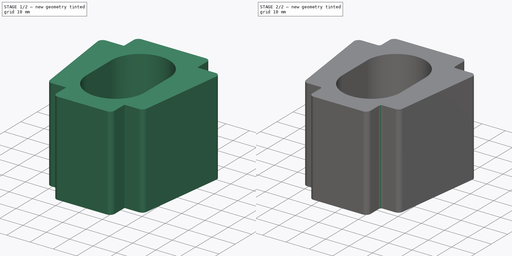
[diagram: build sequence overview — one tinted view per stage of 2, left to right]
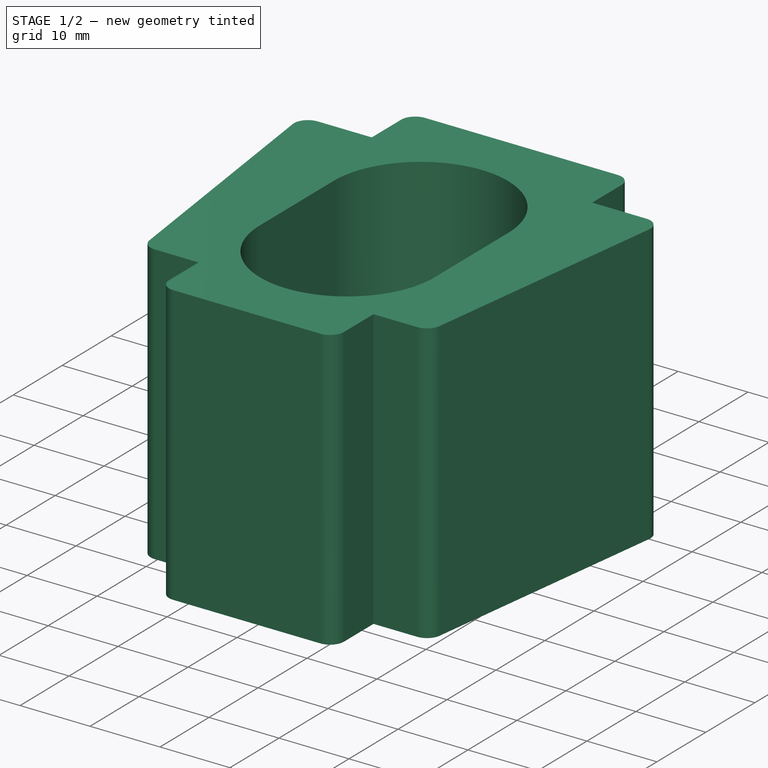
[diagram: stage 1 of 2 — iso view after this stage's code; geometry added in this stage tinted green]
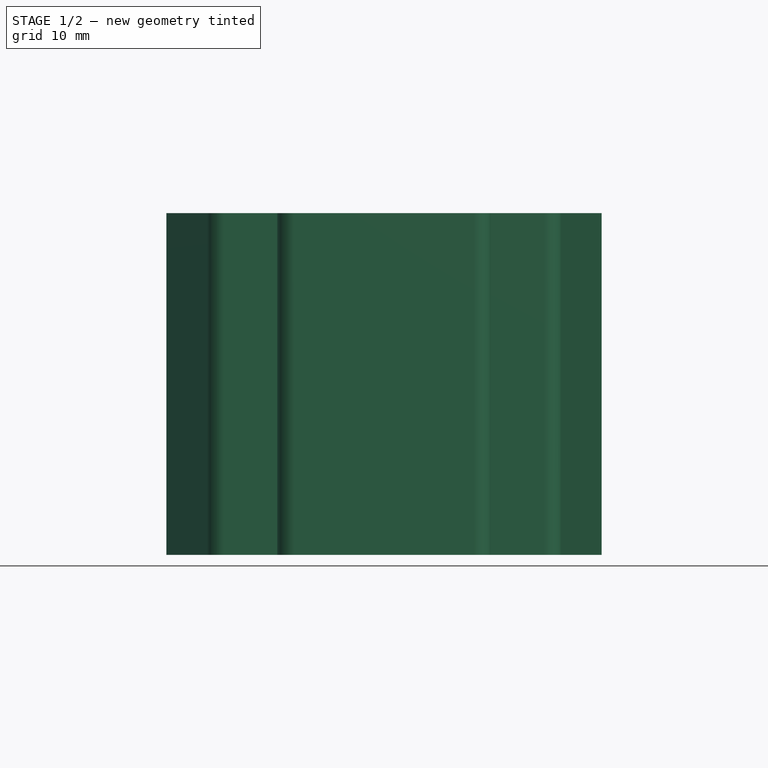
[diagram: stage 1 of 2 — front view after this stage's code; geometry added in this stage tinted green]
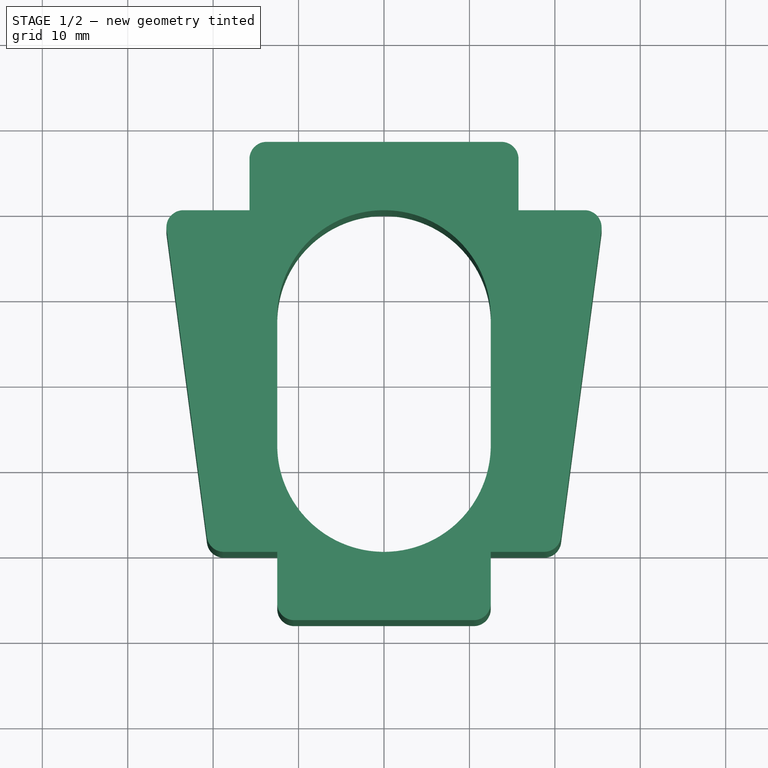
[diagram: stage 1 of 2 — top view after this stage's code; geometry added in this stage tinted green]
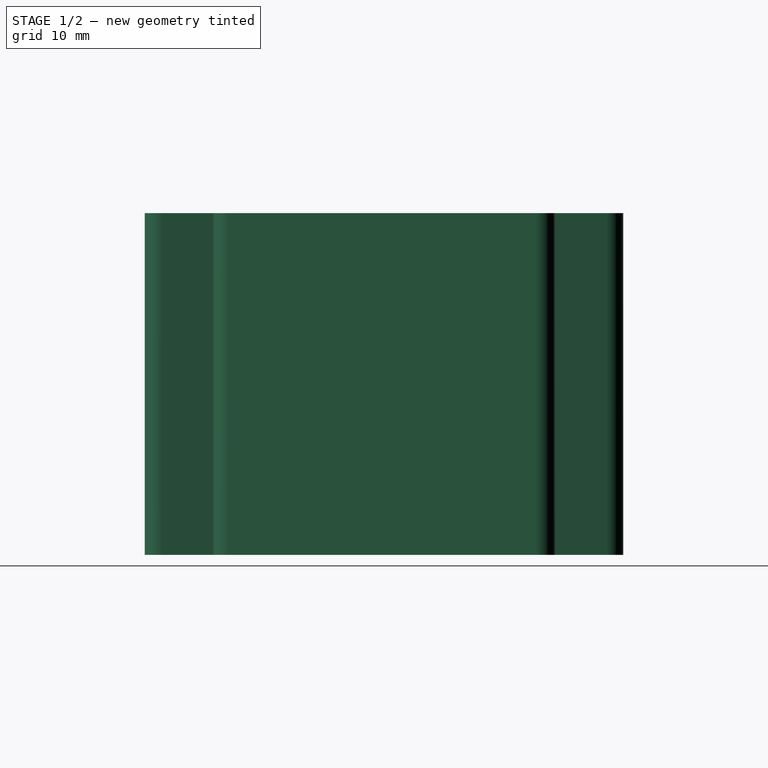
[diagram: stage 1 of 2 — right view after this stage's code; geometry added in this stage tinted green]
FCSTD DOCUMENT  (FreeCAD 0.18R14995 (Git))
Label: XZAlignmentTool
License: All rights reserved
LicenseURL: http://en.wikipedia.org/wiki/All_rights_reserved
objects: PartDesign::Fillet×2, Sketcher::SketchObject×1, PartDesign::Pad×1, PartDesign::Body×1, App::Part×1
note: 6 computed .brp shape members not serialized (recipe doc carries the construction recipe); baked Part::Feature solids carry a one-line shape summary decoded from their .brp

FEATURE [Sketcher::SketchObject] Sketch  label="BaseSketch"
  MapMode = 5
  Support = -> [XY_Plane001]
  sketch-geometry (19):
    g0: LineSegment StartX=-15.75 StartY=28 StartZ=0 EndX=15.75 EndY=28 EndZ=0
    g1: LineSegment StartX=-12.5 StartY=-28 StartZ=0 EndX=12.5 EndY=-28 EndZ=0
    g2: LineSegment StartX=-15.75 StartY=28 StartZ=0 EndX=-15.75 EndY=20 EndZ=0
    g3: LineSegment StartX=15.75 StartY=28 StartZ=0 EndX=15.75 EndY=20 EndZ=0
    g4: LineSegment StartX=15.75 StartY=20 StartZ=0 EndX=25.75 EndY=20 EndZ=0
    g5: LineSegment StartX=-15.75 StartY=20 StartZ=0 EndX=-25.75 EndY=20 EndZ=0
    g6: LineSegment StartX=-12.5 StartY=-28 StartZ=0 EndX=-12.5 EndY=-20 EndZ=0
    g7: LineSegment StartX=-12.5 StartY=-20 StartZ=0 EndX=-20.5 EndY=-20 EndZ=0
    g8: LineSegment StartX=12.5 StartY=-28 StartZ=0 EndX=12.5 EndY=-20 EndZ=0
    g9: LineSegment StartX=12.5 StartY=-20 StartZ=0 EndX=20.5 EndY=-20 EndZ=0
    g10: LineSegment StartX=20.5 StartY=-20 StartZ=0 EndX=25.75 EndY=20 EndZ=0
    g11: LineSegment StartX=-20.5 StartY=-20 StartZ=0 EndX=-25.75 EndY=20 EndZ=0
    g12: LineSegment [constr] StartX=-15.75 StartY=20 StartZ=0 EndX=15.75 EndY=20 EndZ=0
    g13: LineSegment [constr] StartX=-12.5 StartY=-20 StartZ=0 EndX=-12.5 EndY=20 EndZ=0
    g14: ArcOfCircle CenterX=0 CenterY=7.5 CenterZ=0 NormalX=0 NormalY=0 NormalZ=1 AngleXU=0 Radius=12.5 StartAngle=1e-12 EndAngle=3.14159
    g15: ArcOfCircle CenterX=-1.385e-09 CenterY=-7.5 CenterZ=0 NormalX=0 NormalY=0 NormalZ=1 AngleXU=0 Radius=12.5 StartAngle=3.14159 EndAngle=6.28319
    g16: LineSegment StartX=-12.5 StartY=7.5 StartZ=0 EndX=-12.5 EndY=-7.5 EndZ=0
    g17: LineSegment StartX=12.5 StartY=7.5 StartZ=0 EndX=12.5 EndY=-7.5 EndZ=0
    g18: LineSegment [constr] StartX=-12.5 StartY=-20 StartZ=0 EndX=12.5 EndY=-20 EndZ=0
  constraints (49):
    c: Symmetric(g1,g1,g-2)
    c: Symmetric(g0,g0,g-2)
    c: Coincident(g2,g0)
    c: Vertical(g2)
    c: Coincident(g3,g0)
    c: Vertical(g3)
    c: Coincident(g4,g3)
    c: Horizontal(g4)
    c: Coincident(g5,g2)
    c: Horizontal(g5)
    c: Coincident(g6,g1)
    c: Vertical(g6)
    c: Coincident(g7,g6)
    c: Horizontal(g7)
    c: Coincident(g8,g1)
    c: Vertical(g8)
    c: Coincident(g9,g8)
    c: Horizontal(g9)
    c: Coincident(g10,g9)
    c: Coincident(g10,g4)
    c: Coincident(g11,g7)
    c: Coincident(g11,g5)
    c: Equal(g3,g2)
    c: Equal(g6,g8)
    c: Equal(g9,g7)
    c: Equal(g5,g4)
    c: Coincident(g12,g2)
    c: Coincident(g12,g3)
    c: Coincident(g13,g6)
    c: PointOnObject(g13,g12)
    c: Symmetric(g6,g13,g-1)
    c: Distance(g13) = 40
    c: Distance(g1) = 25
    c: Distance(g7) = 8
    c: Distance(g6) = 8
    c: Distance(g0) = 31.5
    c: Distance(g5) = 10
    c: Distance(g2) = 8
    c: Tangent(g14,g17) = 1.5708
    c: Tangent(g14,g16) = -1.5708
    c: Tangent(g16,g15) = -1.5708
    c: Tangent(g17,g15) = 1.5708
    c: Equal(g14,g15)
    c: PointOnObject(g14,g-2)
    c: Tangent(g14,g12)
    c: Coincident(g18,g6)
    c: Coincident(g18,g8)
    c: Tangent(g15,g18)
    c: Tangent(g15,g13) = 1.5708
FEATURE [PartDesign::Pad] Pad  label="BasePad"
  Length = 40
  Length2 = 100
  Profile = -> Sketch
  Type = 0
FEATURE [PartDesign::Fillet] Fillet  label="CornersFillet1"
  Base = -> Pad [Edge11,Edge5,Edge1,Edge32,Edge29,Edge23,Edge20,Edge14]
  BaseFeature = -> Pad
  Radius = 2
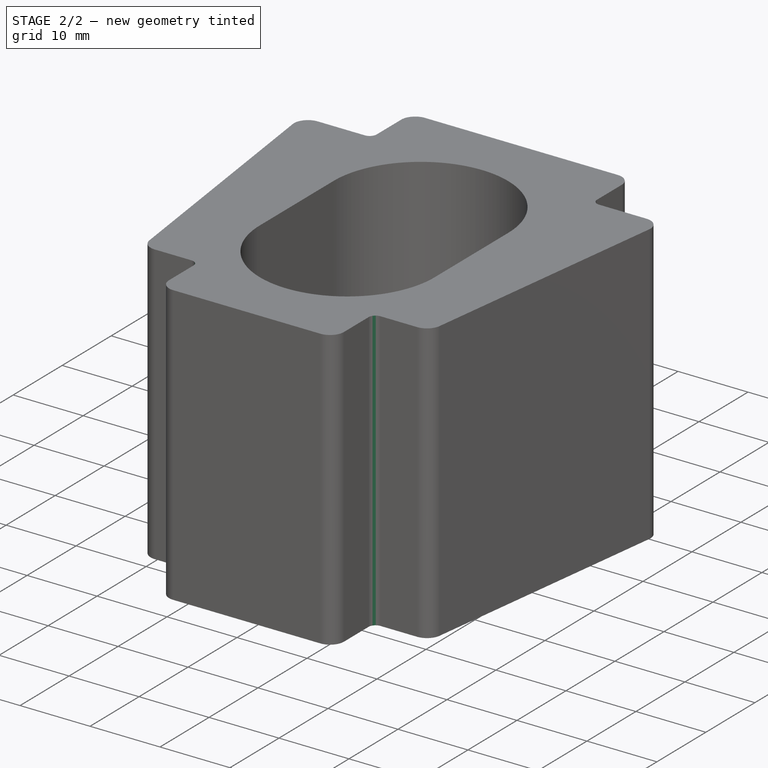
[diagram: stage 2 of 2 — iso view after this stage's code; geometry added in this stage tinted green]
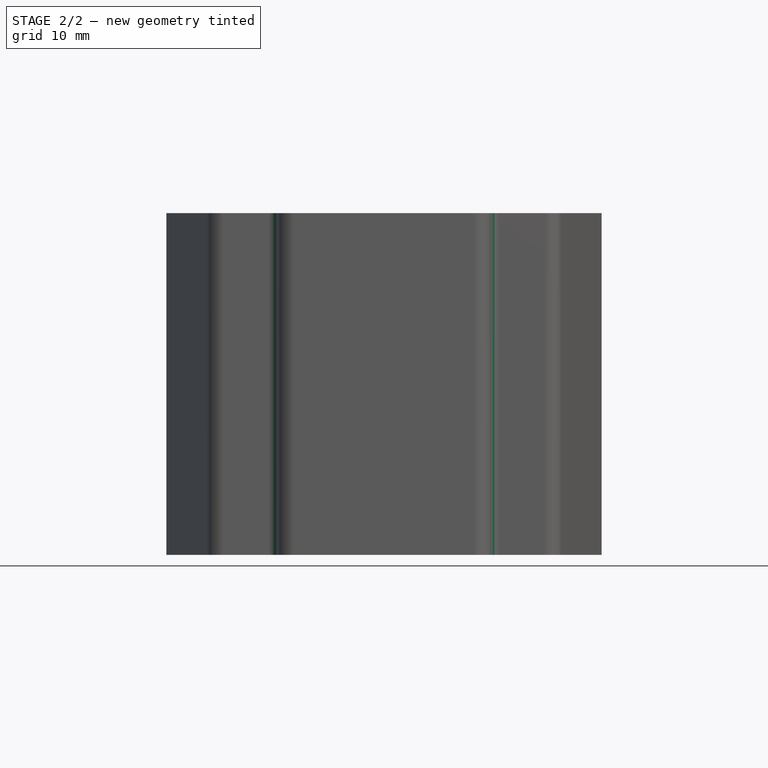
[diagram: stage 2 of 2 — front view after this stage's code; geometry added in this stage tinted green]
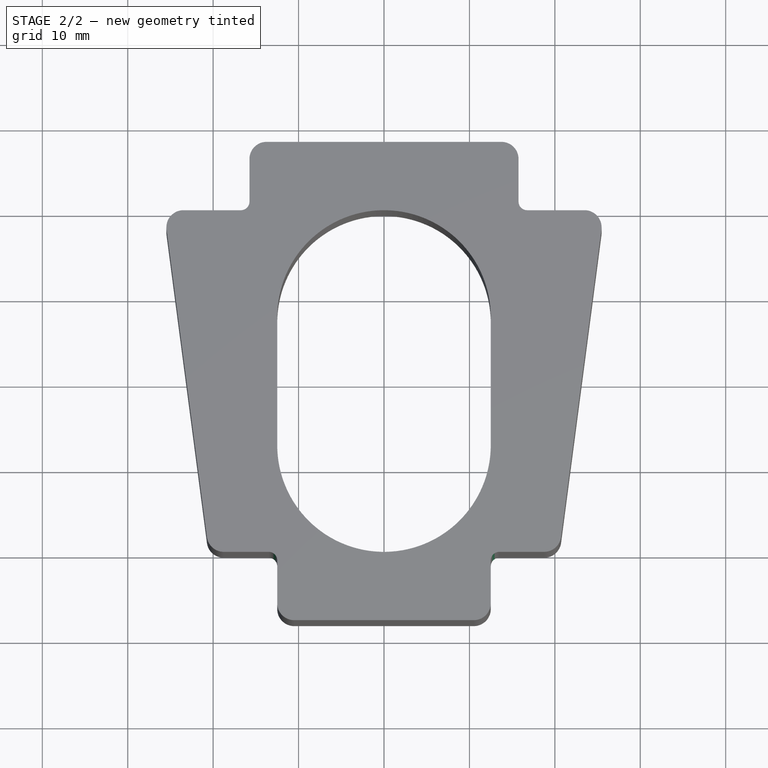
[diagram: stage 2 of 2 — top view after this stage's code; geometry added in this stage tinted green]
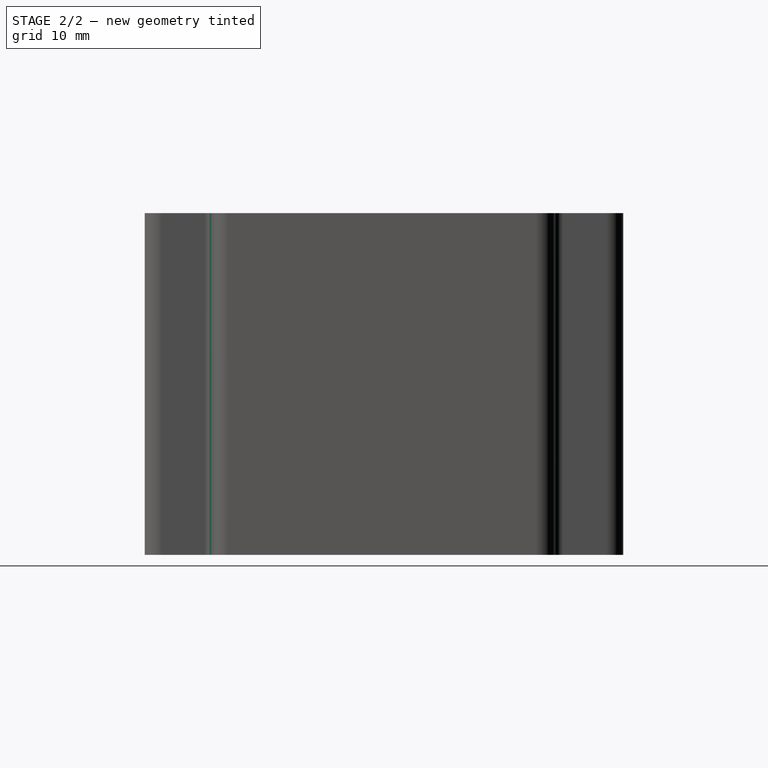
[diagram: stage 2 of 2 — right view after this stage's code; geometry added in this stage tinted green]
FEATURE [PartDesign::Fillet] Fillet001  label="CornersFillet2"
  Base = -> Fillet [Edge57,Edge3,Edge67,Edge60]
  BaseFeature = -> Fillet
  Radius = 1
FEATURE [PartDesign::Body] Body  label="ToolBody"
  Group = -> [Sketch,Pad,Fillet,Fillet001]
  Origin = -> Origin001
  Tip = -> Fillet001
FEATURE [App::Part] Part
  Group = -> [Body]
  License = CC BY 3.0
  LicenseURL = http://creativecommons.org/licenses/by/3.0/
  Origin = -> Origin
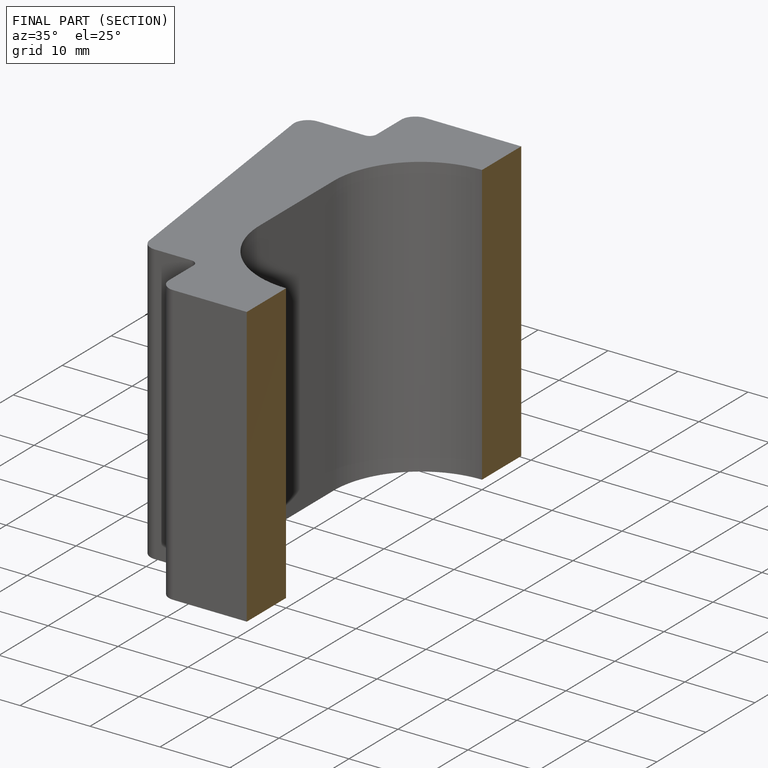
[diagram: finished part — half-section view (interior)]
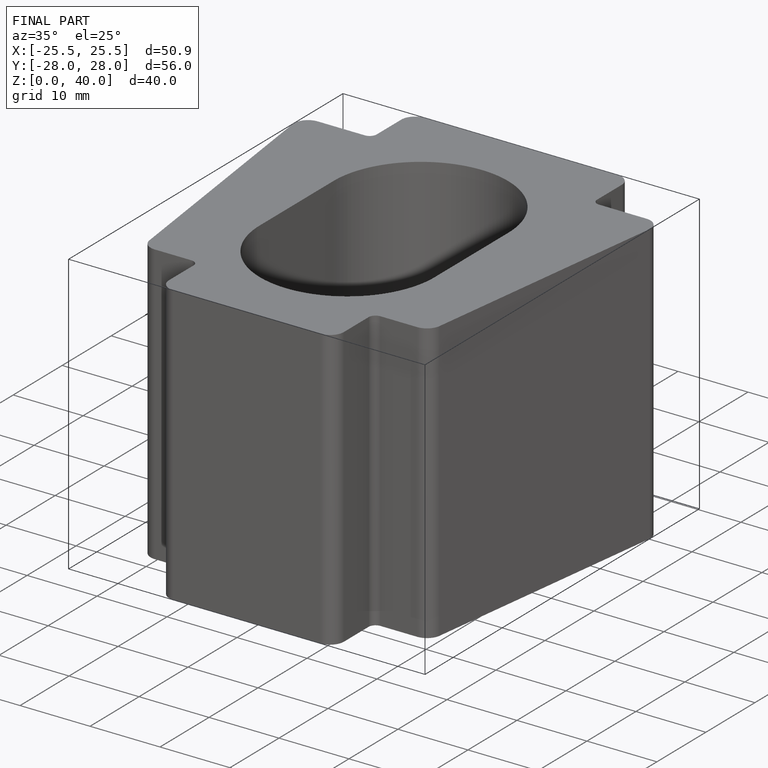
[diagram: finished part — iso view with bounding-box wireframe]
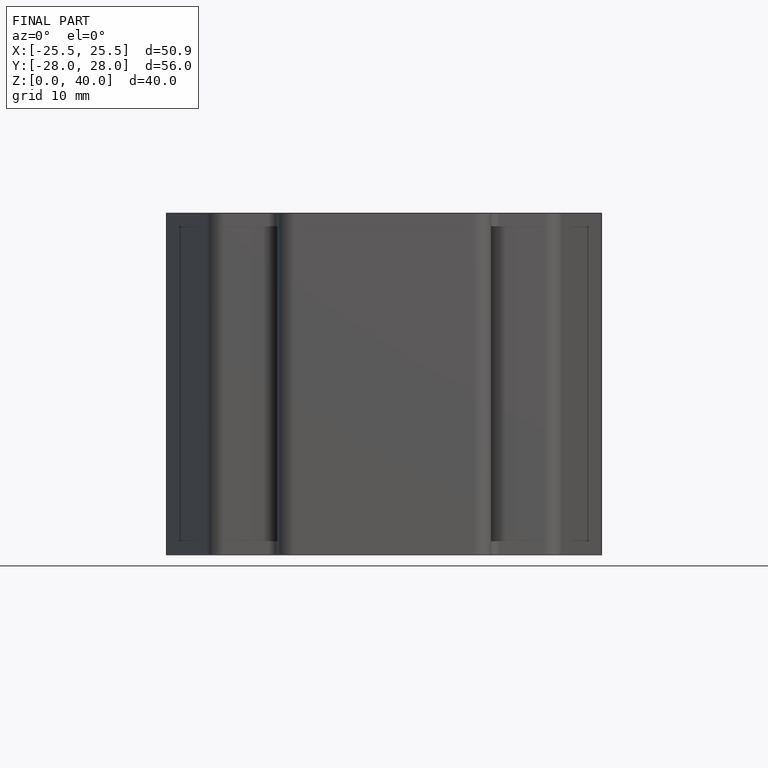
[diagram: finished part — front view with bounding-box wireframe]
